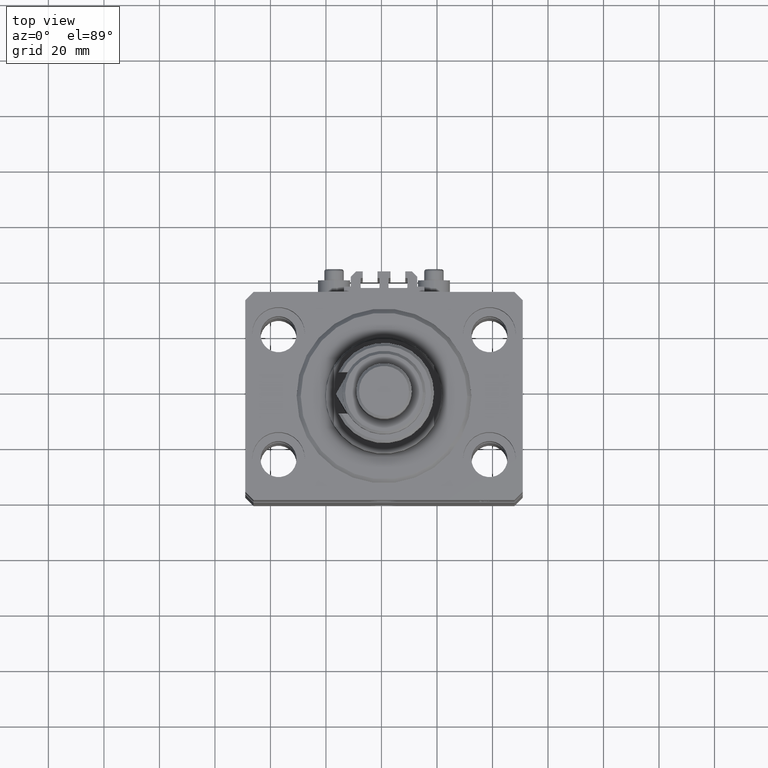
[diagram: clean part render]
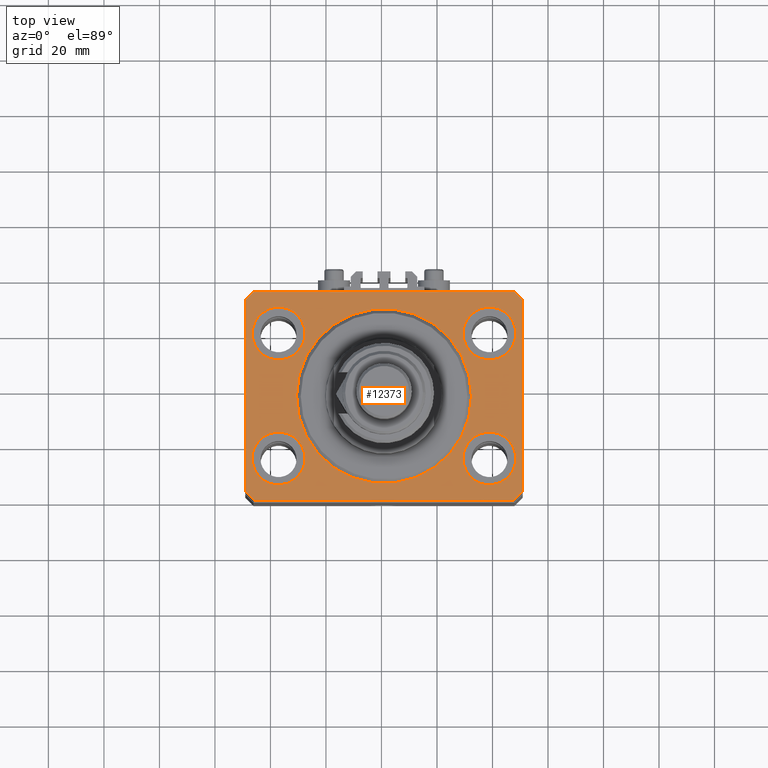
[diagram: same view with one face highlighted and labeled with its STEP entity id]
A machine part, top view. The second image highlights one B-rep face of the part: STEP entity #12373.
In plain terms, the highlighted planar face has unit normal (0, 0, 1).
Its self-contained STEP definition (entity closure, byte-faithful):
#433 = DIRECTION ( 'NONE',  ( -0.7071067811865483499, -0.7071067811865466846, 0.000000000000000000 ) ) ;
#514 = CARTESIAN_POINT ( 'NONE',  ( 50.00000000000051870, 34.49999999999995026, 0.000000000000000000 ) ) ;
#1244 = EDGE_CURVE ( 'NONE', #44727, #45268, #4373, .T. ) ;
#1327 = CARTESIAN_POINT ( 'NONE',  ( -50.00000000000000000, -34.50000000000000000, 0.000000000000000000 ) ) ;
#1371 = DIRECTION ( 'NONE',  ( 1.000000000000000000, 0.000000000000000000, 0.000000000000000000 ) ) ;
#1561 = EDGE_LOOP ( 'NONE', ( #49548, #37413, #33464, #26854, #23174, #26579, #23766, #32231 ) ) ;
#2276 = EDGE_CURVE ( 'NONE', #25975, #28725, #11812, .T. ) ;
#2606 = FACE_BOUND ( 'NONE', #27376, .T. ) ;
#2741 = AXIS2_PLACEMENT_3D ( 'NONE', #28499, #44242, #8905 ) ;
#3429 = VECTOR ( 'NONE', #48794, 1000.000000000000114 ) ;
#4373 = CIRCLE ( 'NONE', #42265, 9.500000000000001776 ) ;
#4436 = EDGE_CURVE ( 'NONE', #28420, #4967, #34541, .T. ) ;
#4627 = DIRECTION ( 'NONE',  ( 2.011273595335428326E-16, -1.000000000000000000, 0.000000000000000000 ) ) ;
#4967 = VERTEX_POINT ( 'NONE', #41419 ) ;
#5075 = AXIS2_PLACEMENT_3D ( 'NONE', #34565, #50308, #14972 ) ;
#6245 = CARTESIAN_POINT ( 'NONE',  ( 0.000000000000000000, 0.000000000000000000, 0.000000000000000000 ) ) ;
#6495 = FACE_OUTER_BOUND ( 'NONE', #1561, .T. ) ;
#6656 = CARTESIAN_POINT ( 'NONE',  ( 0.000000000000000000, 0.000000000000000000, 0.000000000000000000 ) ) ;
#6984 = EDGE_LOOP ( 'NONE', ( #22922, #8624 ) ) ;
#7432 = CARTESIAN_POINT ( 'NONE',  ( -47.00000000000001421, 37.50000000000000000, 0.000000000000000000 ) ) ;
#7941 = CARTESIAN_POINT ( 'NONE',  ( 28.50000000000000355, -22.50000000000000000, 0.000000000000000000 ) ) ;
#8153 = VERTEX_POINT ( 'NONE', #30114 ) ;
#8624 = ORIENTED_EDGE ( 'NONE', *, *, #41873, .F. ) ;
#8905 = DIRECTION ( 'NONE',  ( 1.000000000000000000, 0.000000000000000000, 0.000000000000000000 ) ) ;
#8924 = CIRCLE ( 'NONE', #31998, 31.50000000000000000 ) ;
#9046 = DIRECTION ( 'NONE',  ( -0.7071067811865361374, 0.7071067811865588970, 0.000000000000000000 ) ) ;
#9200 = ORIENTED_EDGE ( 'NONE', *, *, #30799, .F. ) ;
#9349 = LINE ( 'NONE', #1327, #3429 ) ;
#9392 = VERTEX_POINT ( 'NONE', #23332 ) ;
#10120 = DIRECTION ( 'NONE',  ( 0.000000000000000000, 0.000000000000000000, 1.000000000000000000 ) ) ;
#10342 = EDGE_CURVE ( 'NONE', #9392, #28179, #40234, .T. ) ;
#11748 = CARTESIAN_POINT ( 'NONE',  ( 50.00000000000000000, -34.50000000000000711, 0.000000000000000000 ) ) ;
#11812 = CIRCLE ( 'NONE', #2741, 9.500000000000001776 ) ;
#11910 = VERTEX_POINT ( 'NONE', #32362 ) ;
#11984 = VECTOR ( 'NONE', #4627, 1000.000000000000000 ) ;
#12373 = ADVANCED_FACE ( 'NONE', ( #22218, #2606, #26593, #30452, #41580, #6495 ), #21965, .T. ) ;
#12962 = AXIS2_PLACEMENT_3D ( 'NONE', #17263, #14157, #45616 ) ;
#14157 = DIRECTION ( 'NONE',  ( 0.000000000000000000, 0.000000000000000000, 1.000000000000000000 ) ) ;
#14212 = VECTOR ( 'NONE', #50942, 1000.000000000000000 ) ;
#14524 = CARTESIAN_POINT ( 'NONE',  ( -47.00000000000001421, 37.50000000000000000, 0.000000000000000000 ) ) ;
#14754 = AXIS2_PLACEMENT_3D ( 'NONE', #33957, #38078, #26481 ) ;
#14972 = DIRECTION ( 'NONE',  ( 1.000000000000000000, 0.000000000000000000, 0.000000000000000000 ) ) ;
#15249 = CARTESIAN_POINT ( 'NONE',  ( -47.00000000000000000, -37.49999999999999289, 0.000000000000000000 ) ) ;
#15306 = CARTESIAN_POINT ( 'NONE',  ( -50.00000000000000000, -34.50000000000000000, 0.000000000000000000 ) ) ;
#15506 = LINE ( 'NONE', #31485, #23796 ) ;
#15648 = DIRECTION ( 'NONE',  ( 0.000000000000000000, 0.000000000000000000, 1.000000000000000000 ) ) ;
#16648 = ORIENTED_EDGE ( 'NONE', *, *, #19062, .F. ) ;
#16733 = EDGE_CURVE ( 'NONE', #30258, #50490, #44249, .T. ) ;
#16947 = VECTOR ( 'NONE', #433, 1000.000000000000000 ) ;
#17263 = CARTESIAN_POINT ( 'NONE',  ( 38.00000000000000711, 22.50000000000001421, 0.000000000000000000 ) ) ;
#17708 = CARTESIAN_POINT ( 'NONE',  ( -38.00000000000000711, 22.50000000000000000, 0.000000000000000000 ) ) ;
#18158 = ORIENTED_EDGE ( 'NONE', *, *, #33066, .F. ) ;
#18738 = ORIENTED_EDGE ( 'NONE', *, *, #32750, .F. ) ;
#19062 = EDGE_CURVE ( 'NONE', #50490, #30258, #40199, .T. ) ;
#19368 = DIRECTION ( 'NONE',  ( -1.000000000000000000, 7.381802025433175941E-17, 0.000000000000000000 ) ) ;
#19441 = AXIS2_PLACEMENT_3D ( 'NONE', #6245, #10120, #45699 ) ;
#19640 = EDGE_LOOP ( 'NONE', ( #42899, #16648 ) ) ;
#20049 = LINE ( 'NONE', #7432, #16947 ) ;
#20446 = EDGE_LOOP ( 'NONE', ( #18158, #9200 ) ) ;
#20984 = EDGE_CURVE ( 'NONE', #8153, #37084, #15506, .T. ) ;
#21245 = CARTESIAN_POINT ( 'NONE',  ( 38.00000000000000711, -22.50000000000000000, 0.000000000000000000 ) ) ;
#21355 = AXIS2_PLACEMENT_3D ( 'NONE', #27034, #42769, #46639 ) ;
#21770 = DIRECTION ( 'NONE',  ( 0.000000000000000000, 0.000000000000000000, 1.000000000000000000 ) ) ;
#21965 = PLANE ( 'NONE',  #19441 ) ;
#22218 = FACE_BOUND ( 'NONE', #23800, .T. ) ;
#22824 = LINE ( 'NONE', #50180, #24797 ) ;
#22922 = ORIENTED_EDGE ( 'NONE', *, *, #1244, .F. ) ;
#23174 = ORIENTED_EDGE ( 'NONE', *, *, #4436, .T. ) ;
#23332 = CARTESIAN_POINT ( 'NONE',  ( -50.00000000000001421, 34.50000000000000000, 0.000000000000000000 ) ) ;
#23766 = ORIENTED_EDGE ( 'NONE', *, *, #42506, .T. ) ;
#23796 = VECTOR ( 'NONE', #19368, 1000.000000000000000 ) ;
#23800 = EDGE_LOOP ( 'NONE', ( #35215, #43489 ) ) ;
#23830 = CARTESIAN_POINT ( 'NONE',  ( 47.50000000000000711, 22.50000000000001421, 0.000000000000000000 ) ) ;
#24787 = LINE ( 'NONE', #514, #42259 ) ;
#24797 = VECTOR ( 'NONE', #33943, 1000.000000000000000 ) ;
#25377 = EDGE_CURVE ( 'NONE', #37084, #9392, #20049, .T. ) ;
#25975 = VERTEX_POINT ( 'NONE', #48486 ) ;
#25978 = CARTESIAN_POINT ( 'NONE',  ( 50.00000000000051870, 34.49999999999995026, 0.000000000000000000 ) ) ;
#26304 = VERTEX_POINT ( 'NONE', #25978 ) ;
#26481 = DIRECTION ( 'NONE',  ( 1.000000000000000000, 0.000000000000000000, 0.000000000000000000 ) ) ;
#26579 = ORIENTED_EDGE ( 'NONE', *, *, #39731, .T. ) ;
#26593 = FACE_BOUND ( 'NONE', #19640, .T. ) ;
#26854 = ORIENTED_EDGE ( 'NONE', *, *, #41731, .T. ) ;
#26863 = DIRECTION ( 'NONE',  ( 1.000000000000000000, 0.000000000000000000, 0.000000000000000000 ) ) ;
#27034 = CARTESIAN_POINT ( 'NONE',  ( 38.00000000000000711, -22.50000000000000000, 0.000000000000000000 ) ) ;
#27376 = EDGE_LOOP ( 'NONE', ( #18738, #27403 ) ) ;
#27403 = ORIENTED_EDGE ( 'NONE', *, *, #31322, .F. ) ;
#27583 = CARTESIAN_POINT ( 'NONE',  ( -50.00000000000001421, 34.50000000000000000, 0.000000000000000000 ) ) ;
#27871 = AXIS2_PLACEMENT_3D ( 'NONE', #21245, #40358, #1371 ) ;
#28179 = VERTEX_POINT ( 'NONE', #15306 ) ;
#28420 = VERTEX_POINT ( 'NONE', #15249 ) ;
#28499 = CARTESIAN_POINT ( 'NONE',  ( -38.00000000000000711, -22.50000000000000000, 0.000000000000000000 ) ) ;
#28725 = VERTEX_POINT ( 'NONE', #37024 ) ;
#29070 = CARTESIAN_POINT ( 'NONE',  ( 28.50000000000000355, 22.50000000000001421, 0.000000000000000000 ) ) ;
#30114 = CARTESIAN_POINT ( 'NONE',  ( 47.00000000000056843, 37.49999999999999289, 0.000000000000000000 ) ) ;
#30222 = DIRECTION ( 'NONE',  ( 0.000000000000000000, 0.000000000000000000, 1.000000000000000000 ) ) ;
#30258 = VERTEX_POINT ( 'NONE', #23830 ) ;
#30452 = FACE_BOUND ( 'NONE', #6984, .T. ) ;
#30474 = CARTESIAN_POINT ( 'NONE',  ( 38.00000000000000711, 22.50000000000001421, 0.000000000000000000 ) ) ;
#30670 = CARTESIAN_POINT ( 'NONE',  ( -47.00000000000000000, -37.49999999999999289, 0.000000000000000000 ) ) ;
#30799 = EDGE_CURVE ( 'NONE', #41357, #32449, #8924, .T. ) ;
#31118 = DIRECTION ( 'NONE',  ( 1.000000000000000000, 0.000000000000000000, 0.000000000000000000 ) ) ;
#31322 = EDGE_CURVE ( 'NONE', #49376, #50227, #42694, .T. ) ;
#31485 = CARTESIAN_POINT ( 'NONE',  ( 47.00000000000056843, 37.49999999999999289, 0.000000000000000000 ) ) ;
#31531 = VECTOR ( 'NONE', #38925, 1000.000000000000000 ) ;
#31998 = AXIS2_PLACEMENT_3D ( 'NONE', #6656, #15648, #31118 ) ;
#32231 = ORIENTED_EDGE ( 'NONE', *, *, #44349, .T. ) ;
#32362 = CARTESIAN_POINT ( 'NONE',  ( 50.00000000000000000, -34.50000000000000711, 0.000000000000000000 ) ) ;
#32449 = VERTEX_POINT ( 'NONE', #36104 ) ;
#32750 = EDGE_CURVE ( 'NONE', #50227, #49376, #50175, .T. ) ;
#32911 = CIRCLE ( 'NONE', #38682, 9.500000000000001776 ) ;
#33066 = EDGE_CURVE ( 'NONE', #32449, #41357, #35329, .T. ) ;
#33464 = ORIENTED_EDGE ( 'NONE', *, *, #10342, .T. ) ;
#33630 = AXIS2_PLACEMENT_3D ( 'NONE', #30474, #30222, #26863 ) ;
#33769 = CARTESIAN_POINT ( 'NONE',  ( 47.50000000000000711, -22.50000000000000000, 0.000000000000000000 ) ) ;
#33943 = DIRECTION ( 'NONE',  ( 0.7071067811865483499, 0.7071067811865466846, 0.000000000000000000 ) ) ;
#33957 = CARTESIAN_POINT ( 'NONE',  ( 0.000000000000000000, 0.000000000000000000, 0.000000000000000000 ) ) ;
#34363 = CARTESIAN_POINT ( 'NONE',  ( -38.00000000000000711, -22.50000000000000000, 0.000000000000000000 ) ) ;
#34541 = LINE ( 'NONE', #30670, #31531 ) ;
#34565 = CARTESIAN_POINT ( 'NONE',  ( -38.00000000000000711, 22.50000000000000000, 0.000000000000000000 ) ) ;
#35215 = ORIENTED_EDGE ( 'NONE', *, *, #36984, .F. ) ;
#35329 = CIRCLE ( 'NONE', #14754, 31.50000000000000000 ) ;
#36104 = CARTESIAN_POINT ( 'NONE',  ( 31.50000000000000000, 0.000000000000000000, 0.000000000000000000 ) ) ;
#36984 = EDGE_CURVE ( 'NONE', #28725, #25975, #32911, .T. ) ;
#37024 = CARTESIAN_POINT ( 'NONE',  ( -28.50000000000000355, -22.50000000000000000, 0.000000000000000000 ) ) ;
#37084 = VERTEX_POINT ( 'NONE', #14524 ) ;
#37413 = ORIENTED_EDGE ( 'NONE', *, *, #25377, .T. ) ;
#37491 = DIRECTION ( 'NONE',  ( 1.000000000000000000, 0.000000000000000000, 0.000000000000000000 ) ) ;
#38078 = DIRECTION ( 'NONE',  ( 0.000000000000000000, 0.000000000000000000, 1.000000000000000000 ) ) ;
#38682 = AXIS2_PLACEMENT_3D ( 'NONE', #34363, #21770, #37491 ) ;
#38925 = DIRECTION ( 'NONE',  ( 1.000000000000000000, -1.476360405086644309E-16, 0.000000000000000000 ) ) ;
#39731 = EDGE_CURVE ( 'NONE', #4967, #11910, #22824, .T. ) ;
#40199 = CIRCLE ( 'NONE', #33630, 9.500000000000001776 ) ;
#40234 = LINE ( 'NONE', #27583, #11984 ) ;
#40358 = DIRECTION ( 'NONE',  ( 0.000000000000000000, 0.000000000000000000, 1.000000000000000000 ) ) ;
#41357 = VERTEX_POINT ( 'NONE', #43446 ) ;
#41419 = CARTESIAN_POINT ( 'NONE',  ( 47.00000000000000000, -37.50000000000000711, 0.000000000000000000 ) ) ;
#41580 = FACE_BOUND ( 'NONE', #20446, .T. ) ;
#41731 = EDGE_CURVE ( 'NONE', #28179, #28420, #9349, .T. ) ;
#41873 = EDGE_CURVE ( 'NONE', #45268, #44727, #42979, .T. ) ;
#42148 = CARTESIAN_POINT ( 'NONE',  ( -28.50000000000000355, 22.50000000000000000, 0.000000000000000000 ) ) ;
#42259 = VECTOR ( 'NONE', #9046, 1000.000000000000114 ) ;
#42265 = AXIS2_PLACEMENT_3D ( 'NONE', #17708, #49173, #48918 ) ;
#42506 = EDGE_CURVE ( 'NONE', #11910, #26304, #46321, .T. ) ;
#42694 = CIRCLE ( 'NONE', #27871, 9.500000000000001776 ) ;
#42769 = DIRECTION ( 'NONE',  ( 0.000000000000000000, 0.000000000000000000, 1.000000000000000000 ) ) ;
#42899 = ORIENTED_EDGE ( 'NONE', *, *, #16733, .F. ) ;
#42979 = CIRCLE ( 'NONE', #5075, 9.500000000000001776 ) ;
#43446 = CARTESIAN_POINT ( 'NONE',  ( -31.50000000000000000, 3.857637417314162689E-15, 0.000000000000000000 ) ) ;
#43489 = ORIENTED_EDGE ( 'NONE', *, *, #2276, .F. ) ;
#44242 = DIRECTION ( 'NONE',  ( 0.000000000000000000, 0.000000000000000000, 1.000000000000000000 ) ) ;
#44249 = CIRCLE ( 'NONE', #12962, 9.500000000000001776 ) ;
#44349 = EDGE_CURVE ( 'NONE', #26304, #8153, #24787, .T. ) ;
#44727 = VERTEX_POINT ( 'NONE', #42148 ) ;
#45268 = VERTEX_POINT ( 'NONE', #46459 ) ;
#45616 = DIRECTION ( 'NONE',  ( 1.000000000000000000, 0.000000000000000000, 0.000000000000000000 ) ) ;
#45699 = DIRECTION ( 'NONE',  ( 1.000000000000000000, 0.000000000000000000, -0.000000000000000000 ) ) ;
#46321 = LINE ( 'NONE', #11748, #14212 ) ;
#46459 = CARTESIAN_POINT ( 'NONE',  ( -47.50000000000000711, 22.50000000000000000, 0.000000000000000000 ) ) ;
#46639 = DIRECTION ( 'NONE',  ( 1.000000000000000000, 0.000000000000000000, 0.000000000000000000 ) ) ;
#48486 = CARTESIAN_POINT ( 'NONE',  ( -47.50000000000000711, -22.50000000000000000, 0.000000000000000000 ) ) ;
#48794 = DIRECTION ( 'NONE',  ( 0.7071067811865491270, -0.7071067811865459074, 0.000000000000000000 ) ) ;
#48918 = DIRECTION ( 'NONE',  ( 1.000000000000000000, 0.000000000000000000, 0.000000000000000000 ) ) ;
#49173 = DIRECTION ( 'NONE',  ( 0.000000000000000000, 0.000000000000000000, 1.000000000000000000 ) ) ;
#49376 = VERTEX_POINT ( 'NONE', #7941 ) ;
#49548 = ORIENTED_EDGE ( 'NONE', *, *, #20984, .T. ) ;
#50175 = CIRCLE ( 'NONE', #21355, 9.500000000000001776 ) ;
#50180 = CARTESIAN_POINT ( 'NONE',  ( 47.00000000000000000, -37.50000000000000711, 0.000000000000000000 ) ) ;
#50227 = VERTEX_POINT ( 'NONE', #33769 ) ;
#50308 = DIRECTION ( 'NONE',  ( 0.000000000000000000, 0.000000000000000000, 1.000000000000000000 ) ) ;
#50490 = VERTEX_POINT ( 'NONE', #29070 ) ;
#50942 = DIRECTION ( 'NONE',  ( 7.441712302741091634E-15, 1.000000000000000000, 0.000000000000000000 ) ) ;